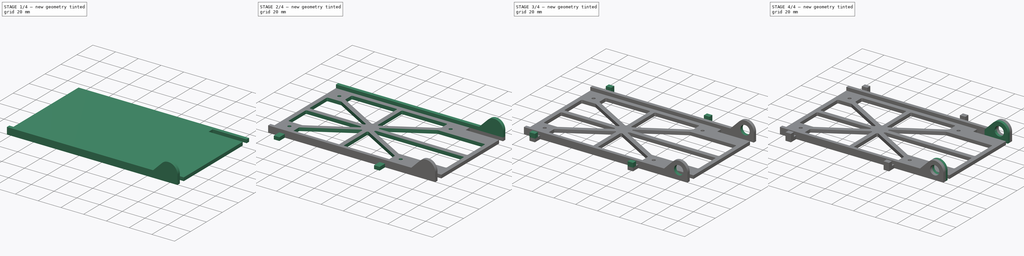
[diagram: build sequence overview — one tinted view per stage of 4, left to right]
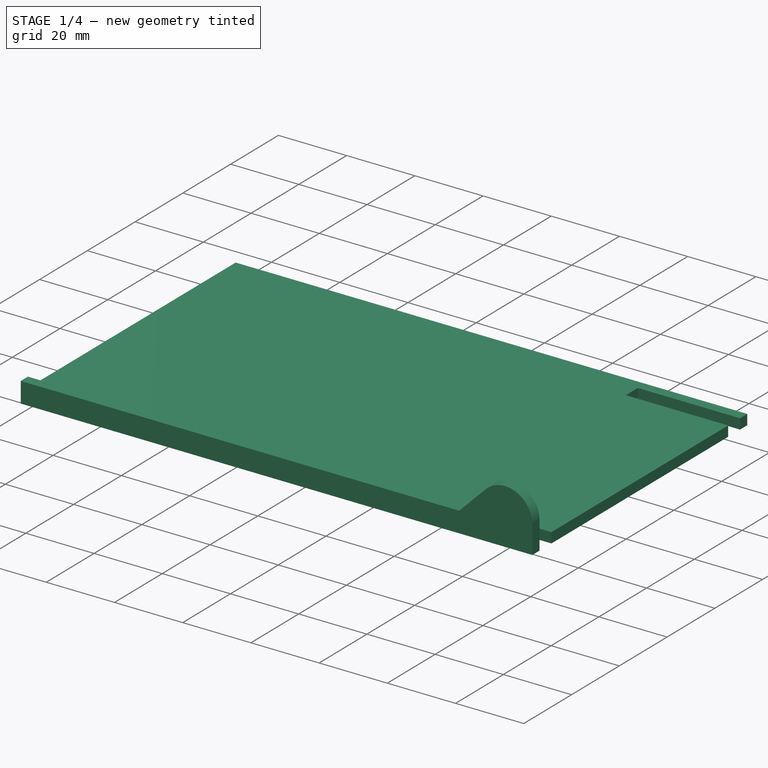
[diagram: stage 1 of 4 — iso view after this stage's code; geometry added in this stage tinted green]
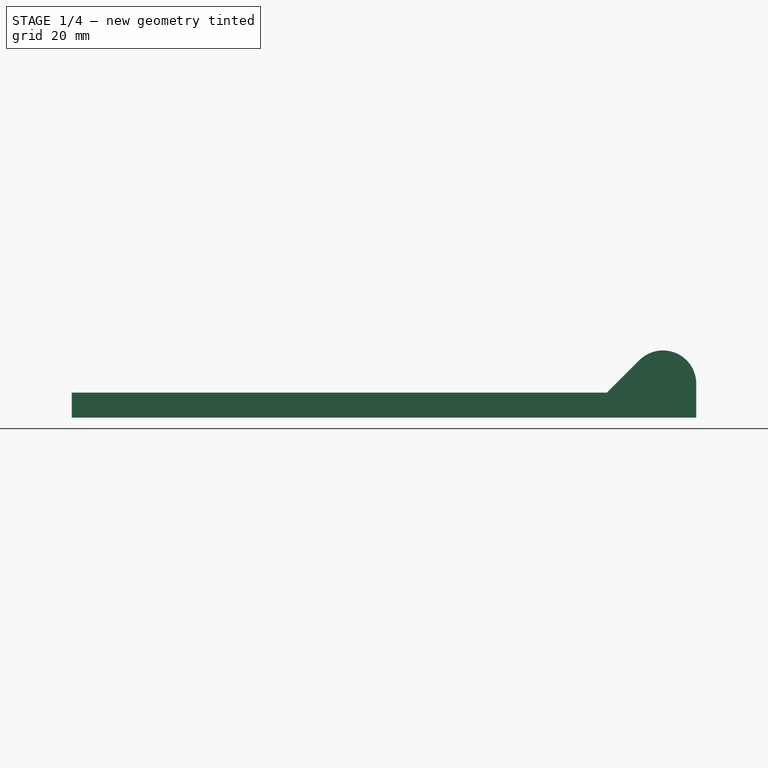
[diagram: stage 1 of 4 — front view after this stage's code; geometry added in this stage tinted green]
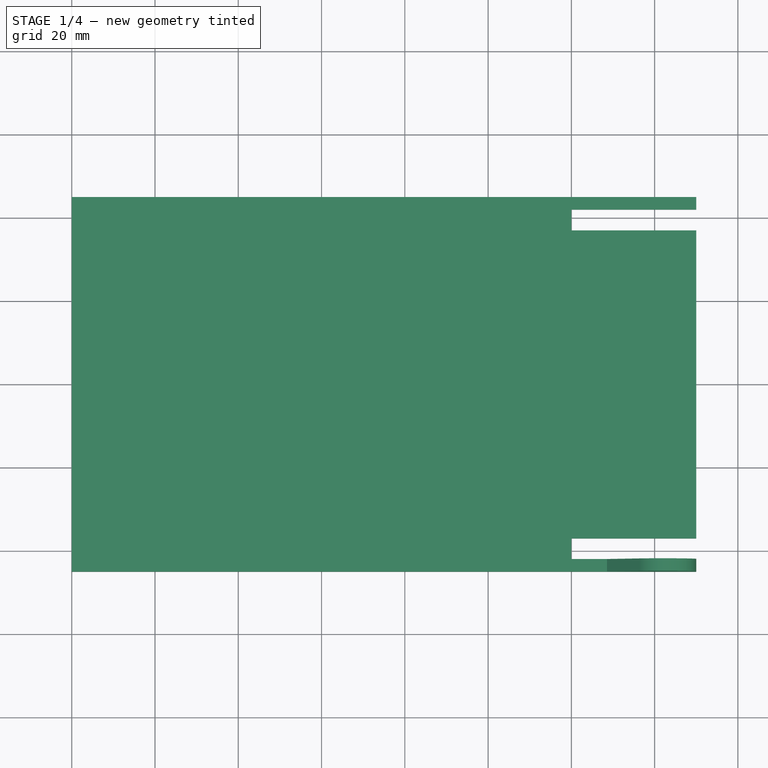
[diagram: stage 1 of 4 — top view after this stage's code; geometry added in this stage tinted green]
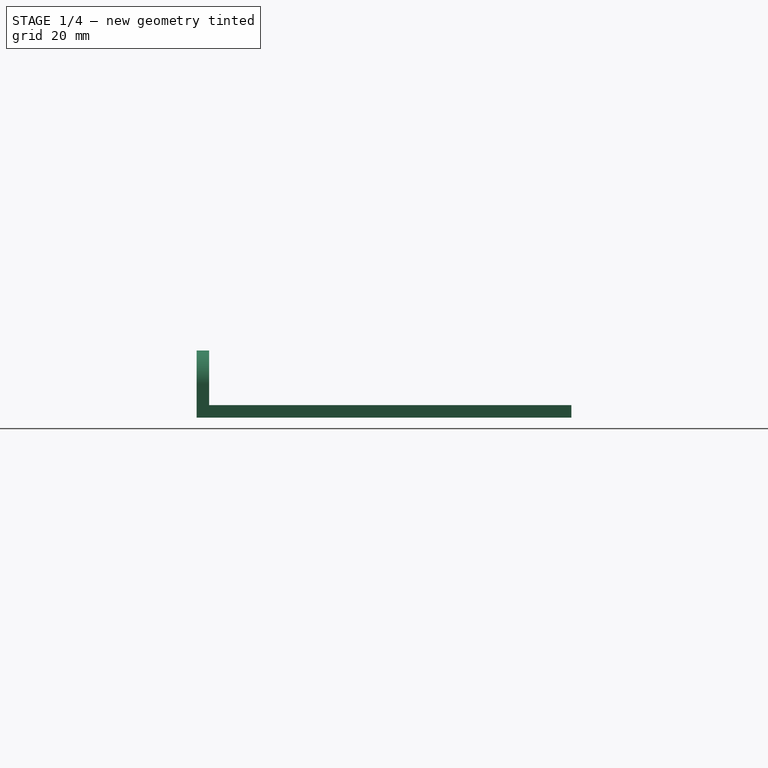
[diagram: stage 1 of 4 — right view after this stage's code; geometry added in this stage tinted green]
FCSTD DOCUMENT  (FreeCAD 0.16R6707 (Git))
Label: Plateau_av_ht
License: All rights reserved
LicenseURL: http://en.wikipedia.org/wiki/All_rights_reserved
objects: Sketcher::SketchObject×10, PartDesign::Pad×8, PartDesign::Pocket×2
note: 30 computed .brp shape members not serialized (recipe doc carries the construction recipe); baked Part::Feature solids carry a one-line shape summary decoded from their .brp

FEATURE [Sketcher::SketchObject] Sketch
  sketch-geometry (12):
    g0: LineSegment StartX=-120 StartY=45 StartZ=0 EndX=30 EndY=45 EndZ=0
    g1: LineSegment StartX=30 StartY=45 StartZ=0 EndX=30 EndY=42 EndZ=0
    g2: LineSegment StartX=30 StartY=-45 StartZ=0 EndX=-120 EndY=-45 EndZ=0
    g3: LineSegment StartX=-120 StartY=-45 StartZ=0 EndX=-120 EndY=45 EndZ=0
    g4: LineSegment StartX=0 StartY=42 StartZ=0 EndX=30 EndY=42 EndZ=0
    g5: LineSegment StartX=30 StartY=37 StartZ=0 EndX=0 EndY=37 EndZ=0
    g6: LineSegment StartX=0 StartY=37 StartZ=0 EndX=0 EndY=42 EndZ=0
    g7: LineSegment StartX=0 StartY=-37 StartZ=0 EndX=30 EndY=-37 EndZ=0
    g8: LineSegment StartX=30 StartY=-42 StartZ=0 EndX=0 EndY=-42 EndZ=0
    g9: LineSegment StartX=0 StartY=-42 StartZ=0 EndX=0 EndY=-37 EndZ=0
    g10: LineSegment StartX=30 StartY=37 StartZ=0 EndX=30 EndY=-37 EndZ=0
    g11: LineSegment StartX=30 StartY=-42 StartZ=0 EndX=30 EndY=-45 EndZ=0
  constraints (38):
    c: Coincident(g0,g1)
    c: Coincident(g11,g2)
    c: Coincident(g2,g3)
    c: Coincident(g3,g0)
    c: Horizontal(g0)
    c: Horizontal(g2)
    c: Vertical(g1)
    c: Vertical(g3)
    c: Coincident(g5,g6)
    c: Coincident(g6,g4)
    c: Horizontal(g4)
    c: Horizontal(g5)
    c: Vertical(g6)
    c: PointOnObject(g4,g-2)
    c: Coincident(g8,g9)
    c: Coincident(g9,g7)
    c: Horizontal(g7)
    c: Horizontal(g8)
    c: Vertical(g9)
    c: PointOnObject(g7,g-2)
    c: PointOnObject(g7,g1)
    c: PointOnObject(g5,g1)
    c: PointOnObject(g1,g4)
    c: PointOnObject(g10,g5)
    c: Tangent(g1,g10)
    c: PointOnObject(g10,g7)
    c: PointOnObject(g11,g8)
    c: Tangent(g10,g11)
    c: DistanceY(g1,g1) = 3
    c: DistanceY(g3,g3) = 90
    c: DistanceY(g11,g11) = 3
    c: DistanceY(g9,g9) = 5
    c: DistanceY(g6,g6) = 5
    c: DistanceX(g2,g2) = 150
    c: DistanceX(g5,g5) = 30
    c: Symmetric(g5,g7,g-1)
    c: Coincident(g4,g1)
    c: Coincident(g11,g8)
FEATURE [PartDesign::Pad] Pad
  Length = 3
  Length2 = 100
  Sketch = -> Sketch
  Type = 0
FEATURE [Sketcher::SketchObject] Sketch001
  ExternalGeometry = -> [Pad]
  Placement = pos=(0,-45,0) rot=(1,0,0;1.5708rad)
  Support = -> Pad [Face2]
  sketch-geometry (7):
    g0: LineSegment StartX=-120 StartY=6 StartZ=0 EndX=-120 EndY=0 EndZ=0
    g1: LineSegment StartX=-120 StartY=6 StartZ=0 EndX=8.56499 EndY=6 EndZ=0
    g2: LineSegment StartX=8.56499 StartY=6 StartZ=0 EndX=16.3432 EndY=13.7782 EndZ=0
    g3: LineSegment [constr] StartX=0 StartY=13.7782 StartZ=0 EndX=16.3432 EndY=13.7782 EndZ=0
    g4: LineSegment StartX=-120 StartY=0 StartZ=0 EndX=30 EndY=0 EndZ=0
    g5: LineSegment StartX=30 StartY=8.12132 StartZ=0 EndX=30 EndY=0 EndZ=0
    g6: ArcOfCircle CenterX=22 CenterY=8.1213 CenterZ=0 NormalX=0 NormalY=0 NormalZ=1 Radius=8 StartAngle=1.67581e-06 EndAngle=2.35619
  constraints (22):
    c: Horizontal(g1)
    c: Coincident(g2,g1)
    c: Coincident(g0,g1)
    c: Vertical(g0)
    c: Horizontal(g3)
    c: PointOnObject(g2,g3)
    c: PointOnObject(g3,g-2)
    c: Coincident(g3,g2)
    c: Coincident(g-5,g0)
    c: Horizontal(g4)
    c: Coincident(g4,g0)
    c: Coincident(g4,g-4)
    c: DistanceY(g0,g0) = 6
    c: Vertical(g5)
    c: Coincident(g5,g4)
    c: Coincident(g5,g6)
    c: Coincident(g2,g6)
    c: Tangent(g6,g5)
    c: Radius(g6) = 8
    c: Tangent(g2,g6)
    c: Angle(g3,g2) = 0.785398
    c: Distance(g2) = 11
FEATURE [PartDesign::Pad] Pad001
  Length = 3
  Length2 = 100
  Reversed = true
  Sketch = -> Sketch001
  Type = 0
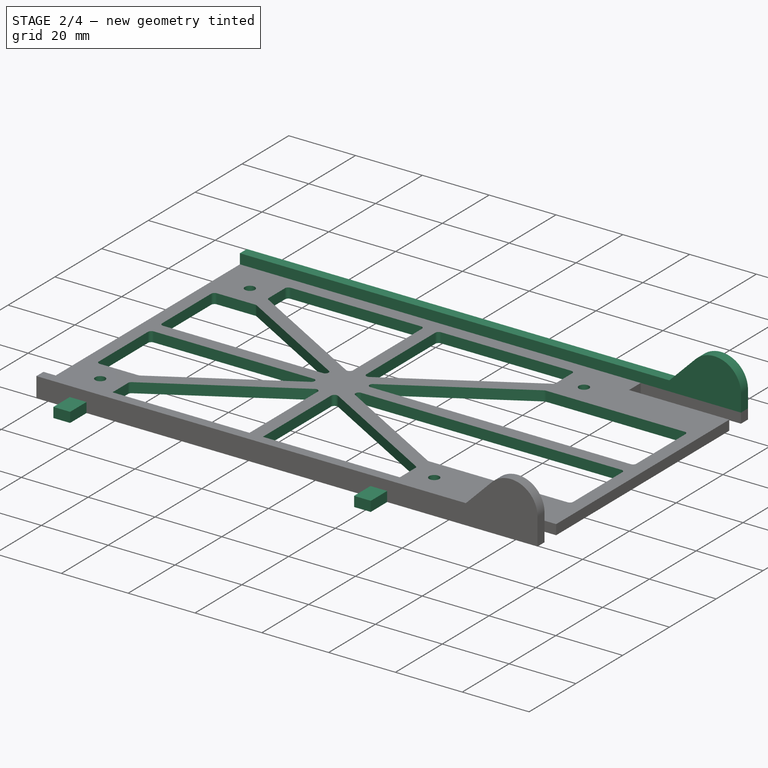
[diagram: stage 2 of 4 — iso view after this stage's code; geometry added in this stage tinted green]
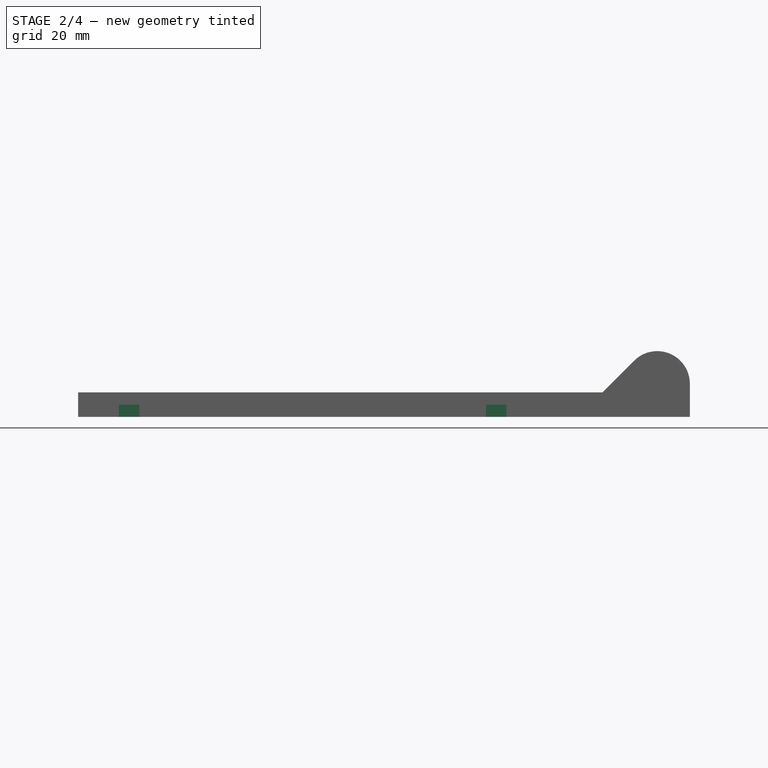
[diagram: stage 2 of 4 — front view after this stage's code; geometry added in this stage tinted green]
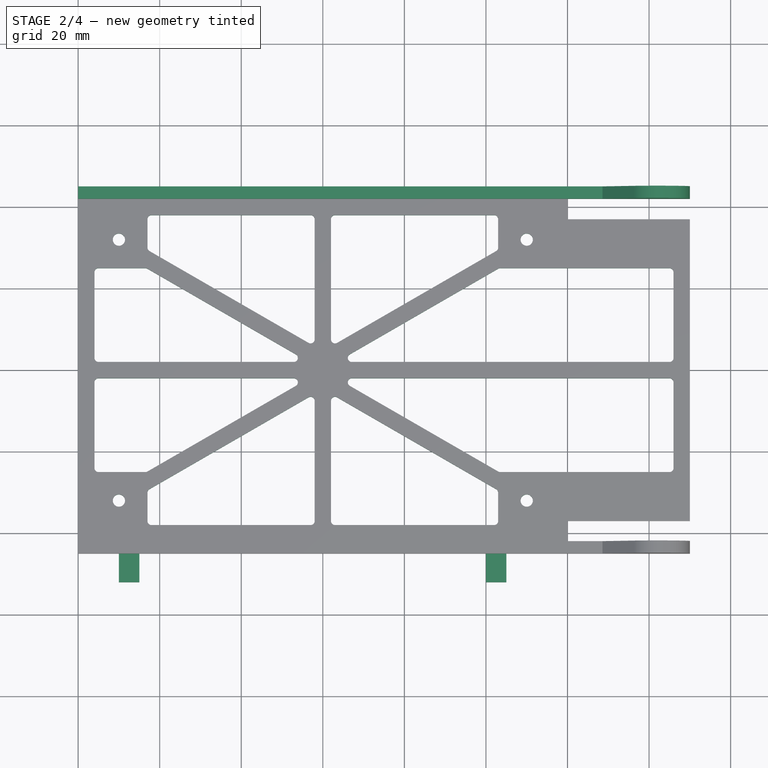
[diagram: stage 2 of 4 — top view after this stage's code; geometry added in this stage tinted green]
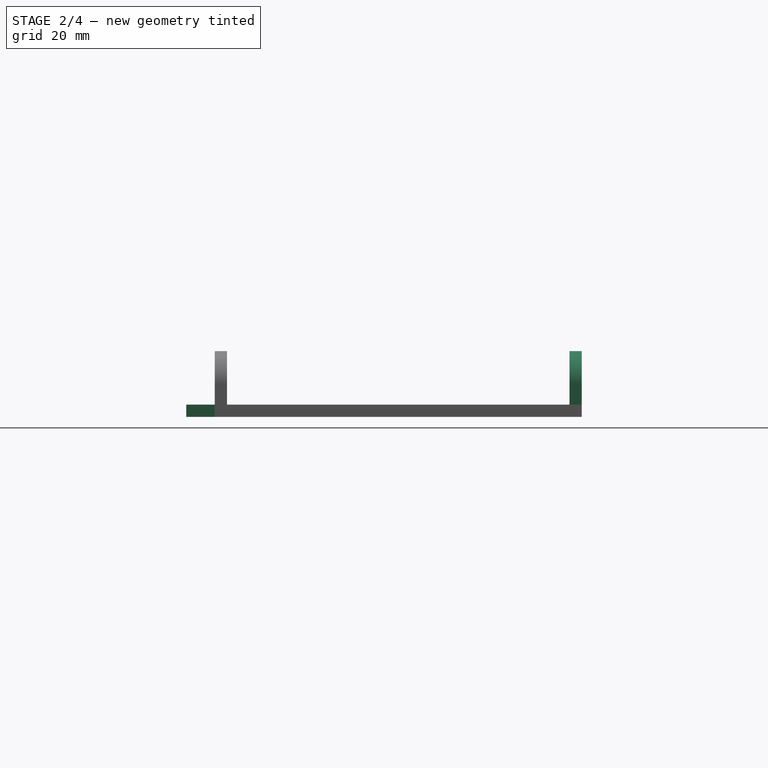
[diagram: stage 2 of 4 — right view after this stage's code; geometry added in this stage tinted green]
FEATURE [Sketcher::SketchObject] Sketch002
  ExternalGeometry = -> [Pad]
  Placement = pos=(0,45,0) rot=(0,0.707107,0.707107;3.14159rad)
  Support = -> Pad001 [Face1]
  sketch-geometry (9):
    g0: LineSegment StartX=-8.56498 StartY=6 StartZ=0 EndX=120 EndY=6 EndZ=0
    g1: LineSegment StartX=-8.56498 StartY=6 StartZ=0 EndX=-16.3432 EndY=13.7782 EndZ=0
    g2: LineSegment [constr] StartX=-16.3432 StartY=13.7782 StartZ=0 EndX=0 EndY=13.7782 EndZ=0
    g3: LineSegment StartX=120 StartY=0 StartZ=0 EndX=-19.2829 EndY=0 EndZ=0
    g4: LineSegment StartX=120 StartY=6 StartZ=0 EndX=120 EndY=0 EndZ=0
    g5: LineSegment StartX=-30 StartY=8.12131 StartZ=0 EndX=-30 EndY=0 EndZ=0
    g6: ArcOfCircle CenterX=-22 CenterY=8.12131 CenterZ=0 NormalX=0 NormalY=0 NormalZ=1 Radius=8 StartAngle=0.7854 EndAngle=3.14159
    g7: LineSegment StartX=-24.7171 StartY=0 StartZ=0 EndX=-30 EndY=0 EndZ=0
    g8: LineSegment StartX=-24.7171 StartY=0 StartZ=0 EndX=-19.2829 EndY=0 EndZ=0
  constraints (24):
    c: Horizontal(g0)
    c: Horizontal(g2)
    c: Horizontal(g3)
    c: Coincident(g0,g1)
    c: Coincident(g7,g5)
    c: Coincident(g7,g-4)
    c: Coincident(g0,g4)
    c: Coincident(g3,g4)
    c: Coincident(g3,g-5)
    c: Angle(g1,g2) = 0.785398
    c: DistanceY(g3,g0) = 6
    c: Tangent(g6,g-4)
    c: Tangent(g6,g1)
    c: Coincident(g6,g1)
    c: Coincident(g6,g2)
    c: Radius(g6) = 8
    c: Vertical(g5)
    c: Coincident(g6,g5)
    c: Distance(g1) = 11
    c: Vertical(g4)
    c: PointOnObject(g2,g-2)
    c: Tangent(g3,g7)
    c: Coincident(g8,g3)
    c: Coincident(g8,g7)
FEATURE [PartDesign::Pad] Pad002
  Length = 3
  Length2 = 100
  Reversed = true
  Sketch = -> Sketch002
  Type = 0
FEATURE [Sketcher::SketchObject] Sketch005
  ExternalGeometry = -> [Pad002]
  Placement = pos=(0,0,3) rot=(0,0,1;0rad)
  Support = -> Pad002 [Face3]
  sketch-geometry (86):
    g0: Circle CenterX=-110 CenterY=32 CenterZ=0 NormalX=0 NormalY=0 NormalZ=1 Radius=1.5
    g1: Circle CenterX=-110 CenterY=-32 CenterZ=0 NormalX=0 NormalY=0 NormalZ=1 Radius=1.5
    g2: LineSegment StartX=-58 StartY=37 StartZ=0 EndX=-58 EndY=7.54552 EndZ=0
    g3: LineSegment StartX=-56.5 StartY=6.67949 StartZ=0 EndX=-17.5 EndY=29.1962 EndZ=0
    g4: LineSegment StartX=-102.5 StartY=29.1962 StartZ=0 EndX=-63.5 EndY=6.67949 EndZ=0
    g5: LineSegment StartX=-103 StartY=24.866 StartZ=0 EndX=-66.6269 EndY=3.86603 EndZ=0
    g6: LineSegment StartX=-115 StartY=2 StartZ=0 EndX=-67.1269 EndY=2 EndZ=0
    g7: LineSegment StartX=-116 StartY=24 StartZ=0 EndX=-116 EndY=3 EndZ=0
    g8: LineSegment StartX=-116 StartY=-3 StartZ=0 EndX=-116 EndY=-24 EndZ=0
    g9: LineSegment StartX=-115 StartY=-2 StartZ=0 EndX=-67.1269 EndY=-2 EndZ=0
    g10: LineSegment StartX=-103 StartY=-24.866 StartZ=0 EndX=-66.6269 EndY=-3.86603 EndZ=0
    g11: LineSegment StartX=-102.5 StartY=-29.1962 StartZ=0 EndX=-63.5 EndY=-6.67949 EndZ=0
    g12: LineSegment StartX=-102 StartY=-38 StartZ=0 EndX=-63 EndY=-38 EndZ=0
    g13: LineSegment StartX=-62 StartY=-7.54552 StartZ=0 EndX=-62 EndY=-37 EndZ=0
    g14: LineSegment StartX=-62 StartY=37 StartZ=0 EndX=-62 EndY=7.54552 EndZ=0
    g15: LineSegment StartX=-58 StartY=-7.54552 StartZ=0 EndX=-58 EndY=-37 EndZ=0
    g16: LineSegment StartX=-56.5 StartY=-6.67949 StartZ=0 EndX=-17.5 EndY=-29.1962 EndZ=0
    g17: LineSegment StartX=-53.3731 StartY=-3.86603 StartZ=0 EndX=-17 EndY=-24.866 EndZ=0
    g18: LineSegment StartX=-52.8731 StartY=-2 StartZ=0 EndX=25 EndY=-2 EndZ=0
    g19: LineSegment StartX=26 StartY=-3 StartZ=0 EndX=26 EndY=-24 EndZ=0
    g20: LineSegment StartX=-52.8731 StartY=2 StartZ=0 EndX=25 EndY=2 EndZ=0
    g21: LineSegment StartX=-53.3731 StartY=3.86603 StartZ=0 EndX=-17 EndY=24.866 EndZ=0
    g22: LineSegment StartX=26 StartY=24 StartZ=0 EndX=26 EndY=3 EndZ=0
    g23: LineSegment StartX=-103 StartY=37 StartZ=0 EndX=-103 EndY=30.0622 EndZ=0
    g24: LineSegment StartX=-115 StartY=25 StartZ=0 EndX=-103.5 EndY=25 EndZ=0
    g25: LineSegment StartX=-115 StartY=-25 StartZ=0 EndX=-103.5 EndY=-25 EndZ=0
    g26: LineSegment StartX=-103 StartY=-37 StartZ=0 EndX=-103 EndY=-30.0622 EndZ=0
    g27: ArcOfCircle CenterX=25 CenterY=-3 CenterZ=0 NormalX=0 NormalY=0 NormalZ=1 Radius=1 StartAngle=1.7999e-08 EndAngle=1.5708
    g28: ArcOfCircle CenterX=25 CenterY=3 CenterZ=0 NormalX=0 NormalY=0 NormalZ=1 Radius=1 StartAngle=4.71239 EndAngle=6.28319
    g29: ArcOfCircle CenterX=-52.8731 CenterY=3 CenterZ=0 NormalX=0 NormalY=0 NormalZ=1 Radius=1 StartAngle=2.0944 EndAngle=4.71239
    g30: ArcOfCircle CenterX=-52.8731 CenterY=-3 CenterZ=0 NormalX=0 NormalY=0 NormalZ=1 Radius=1 StartAngle=1.5708 EndAngle=4.18879
    g31: ArcOfCircle CenterX=-57 CenterY=7.54552 CenterZ=0 NormalX=0 NormalY=0 NormalZ=1 Radius=1 StartAngle=3.14159 EndAngle=5.23599
    g32: ArcOfCircle CenterX=-63 CenterY=7.54552 CenterZ=0 NormalX=0 NormalY=0 NormalZ=1 Radius=1 StartAngle=4.18879 EndAngle=6.28319
    g33: ArcOfCircle CenterX=-102 CenterY=30.0622 CenterZ=0 NormalX=0 NormalY=0 NormalZ=1 Radius=1 StartAngle=3.14159 EndAngle=4.18879
    g34: ArcOfCircle CenterX=-103.5 CenterY=24 CenterZ=0 NormalX=0 NormalY=0 NormalZ=1 Radius=1 StartAngle=1.0472 EndAngle=1.5708
    g35: ArcOfCircle CenterX=-115 CenterY=24 CenterZ=0 NormalX=0 NormalY=0 NormalZ=1 Radius=1 StartAngle=1.5708 EndAngle=3.14159
    g36: ArcOfCircle CenterX=-115 CenterY=3 CenterZ=0 NormalX=0 NormalY=0 NormalZ=1 Radius=1 StartAngle=3.14159 EndAngle=4.71239
    g37: ArcOfCircle CenterX=-115 CenterY=-3 CenterZ=0 NormalX=0 NormalY=0 NormalZ=1 Radius=1 StartAngle=1.5708 EndAngle=3.1416
    g38: ArcOfCircle CenterX=-115 CenterY=-24 CenterZ=0 NormalX=0 NormalY=0 NormalZ=1 Radius=1 StartAngle=3.14159 EndAngle=4.71239
    g39: ArcOfCircle CenterX=-67.1269 CenterY=-3 CenterZ=0 NormalX=0 NormalY=0 NormalZ=1 Radius=1 StartAngle=5.23599 EndAngle=7.85398
    g40: ArcOfCircle CenterX=-63 CenterY=-7.54552 CenterZ=0 NormalX=0 NormalY=0 NormalZ=1 Radius=1 StartAngle=2.258e-08 EndAngle=2.0944
    g41: ArcOfCircle CenterX=-63 CenterY=-37 CenterZ=0 NormalX=0 NormalY=0 NormalZ=1 Radius=1 StartAngle=4.71239 EndAngle=6.28319
    g42: ArcOfCircle CenterX=-57 CenterY=-7.54552 CenterZ=0 NormalX=0 NormalY=0 NormalZ=1 Radius=1 StartAngle=1.0472 EndAngle=3.14159
    g43: LineSegment [constr] StartX=-32.2628 StartY=20.6728 StartZ=0 EndX=-30.2628 EndY=17.2087 EndZ=0
    g44: LineSegment [constr] StartX=-37.5046 StartY=-17.6465 StartZ=0 EndX=-35.5046 EndY=-14.1824 EndZ=0
    g45: LineSegment [constr] StartX=-76.3362 StartY=-9.47166 StartZ=0 EndX=-74.3362 EndY=-12.9358 EndZ=0
    g46: LineSegment [constr] StartX=-84.5003 StartY=14.1852 StartZ=0 EndX=-82.5003 EndY=17.6493 EndZ=0
    g47: ArcOfCircle CenterX=-102 CenterY=-30.0622 CenterZ=0 NormalX=0 NormalY=0 NormalZ=1 Radius=1 StartAngle=2.09439 EndAngle=3.14159
    g48: ArcOfCircle CenterX=-102 CenterY=-37 CenterZ=0 NormalX=0 NormalY=0 NormalZ=1 Radius=1 StartAngle=3.14159 EndAngle=4.71239
    g49: GeomPoint [constr] X=-120 Y=0 Z=0
    g50: LineSegment [constr] StartX=-103 StartY=-24.866 StartZ=0 EndX=-103 EndY=-30.0622 EndZ=0
    g51: LineSegment [constr] StartX=-103 StartY=30.0622 StartZ=0 EndX=-103 EndY=24.866 EndZ=0
    g52: LineSegment [constr] StartX=-57 StartY=7.54552 StartZ=0 EndX=-57 EndY=-7.54552 EndZ=0
    g53: LineSegment [constr] StartX=-63 StartY=7.54552 StartZ=0 EndX=-57 EndY=7.54552 EndZ=0
    g54: LineSegment [constr] StartX=-67.1269 StartY=3 StartZ=0 EndX=-67.1269 EndY=-3 EndZ=0
    g55: LineSegment [constr] StartX=-63 StartY=38 StartZ=0 EndX=-57 EndY=38 EndZ=0
    g56: LineSegment StartX=-102 StartY=38 StartZ=0 EndX=-63 EndY=38 EndZ=0
    g57: LineSegment StartX=-57 StartY=38 StartZ=0 EndX=-18 EndY=38 EndZ=0
    g58: ArcOfCircle CenterX=-102 CenterY=37 CenterZ=0 NormalX=0 NormalY=0 NormalZ=1 Radius=1 StartAngle=1.5708 EndAngle=3.14159
    g59: ArcOfCircle CenterX=-63 CenterY=37 CenterZ=0 NormalX=0 NormalY=0 NormalZ=1 Radius=1 StartAngle=0 EndAngle=1.5708
    g60: ArcOfCircle CenterX=-57 CenterY=37 CenterZ=0 NormalX=0 NormalY=0 NormalZ=1 Radius=1 StartAngle=1.5708 EndAngle=3.14159
    g61: ArcOfCircle CenterX=-67.1269 CenterY=3 CenterZ=0 NormalX=0 NormalY=0 NormalZ=1 Radius=1 StartAngle=4.71239 EndAngle=7.33038
    g62: LineSegment [constr] StartX=-52.8731 StartY=3 StartZ=0 EndX=-52.8731 EndY=-3 EndZ=0
    g63: ArcOfCircle CenterX=-103.5 CenterY=-24 CenterZ=0 NormalX=0 NormalY=0 NormalZ=1 Radius=1 StartAngle=4.71239 EndAngle=5.23599
    g64: LineSegment StartX=-17 StartY=-30.0622 StartZ=0 EndX=-17 EndY=-37 EndZ=0
    g65: LineSegment StartX=-57 StartY=-38 StartZ=0 EndX=-18 EndY=-38 EndZ=0
    g66: ArcOfCircle CenterX=-18 CenterY=-30.0622 CenterZ=0 NormalX=0 NormalY=0 NormalZ=1 Radius=1 StartAngle=0 EndAngle=1.0472
    g67: ArcOfCircle CenterX=-57 CenterY=-37 CenterZ=0 NormalX=0 NormalY=0 NormalZ=1 Radius=1 StartAngle=3.14159 EndAngle=4.71239
    g68: ArcOfCircle CenterX=-18 CenterY=-37 CenterZ=0 NormalX=0 NormalY=0 NormalZ=1 Radius=1 StartAngle=4.71239 EndAngle=6.28319
    g69: LineSegment [constr] StartX=-63 StartY=-38 StartZ=0 EndX=-57 EndY=-38 EndZ=0
    g70: Circle CenterX=-10 CenterY=-32 CenterZ=0 NormalX=0 NormalY=0 NormalZ=1 Radius=1.5
    g71: LineSegment StartX=-16.5 StartY=-25 StartZ=0 EndX=25 EndY=-25 EndZ=0
    g72: ArcOfCircle CenterX=-16.5 CenterY=-24 CenterZ=0 NormalX=0 NormalY=0 NormalZ=1 Radius=1 StartAngle=4.18879 EndAngle=4.71239
    g73: ArcOfCircle CenterX=25 CenterY=-24 CenterZ=0 NormalX=0 NormalY=0 NormalZ=1 Radius=1 StartAngle=4.71239 EndAngle=6.28319
    g74: LineSegment [constr] StartX=-17 StartY=-24.866 StartZ=0 EndX=-17 EndY=-30.0622 EndZ=0
    g75: LineSegment StartX=-16.5 StartY=25 StartZ=0 EndX=25 EndY=25 EndZ=0
    g76: Circle CenterX=-10 CenterY=32 CenterZ=0 NormalX=0 NormalY=0 NormalZ=1 Radius=1.5
    g77: ArcOfCircle CenterX=25 CenterY=24 CenterZ=0 NormalX=0 NormalY=0 NormalZ=1 Radius=1 StartAngle=0 EndAngle=1.5708
    g78: LineSegment [constr] StartX=26 StartY=3 StartZ=0 EndX=26 EndY=-3 EndZ=0
    g79: ArcOfCircle CenterX=-16.5 CenterY=24 CenterZ=0 NormalX=0 NormalY=0 NormalZ=1 Radius=1 StartAngle=1.5708 EndAngle=2.0944
    g80: LineSegment StartX=-17 StartY=37 StartZ=0 EndX=-17 EndY=30.0622 EndZ=0
    g81: LineSegment [constr] StartX=-17 StartY=30.0622 StartZ=0 EndX=-17 EndY=24.866 EndZ=0
    g82: ArcOfCircle CenterX=-18 CenterY=30.0622 CenterZ=0 NormalX=0 NormalY=0 NormalZ=1 Radius=1 StartAngle=5.23599 EndAngle=6.28319
    g83: ArcOfCircle CenterX=-18 CenterY=37 CenterZ=0 NormalX=0 NormalY=0 NormalZ=1 Radius=1 StartAngle=0 EndAngle=1.5708
    g84: LineSegment [constr] StartX=-63 StartY=-7.54552 StartZ=0 EndX=-57 EndY=-7.54552 EndZ=0
    g85: LineSegment [constr] StartX=-116 StartY=3 StartZ=0 EndX=-116 EndY=-3 EndZ=0
  constraints (247):
    c: Coincident(g3,g31)
    c: Coincident(g4,g32)
    c: Coincident(g4,g33)
    c: Coincident(g51,g5)
    c: Coincident(g36,g7)
    c: Coincident(g8,g37)
    c: Coincident(g38,g8)
    c: Coincident(g37,g9)
    c: Coincident(g10,g39)
    c: Coincident(g40,g11)
    c: Coincident(g11,g47)
    c: Coincident(g41,g12)
    c: Coincident(g48,g12)
    c: Coincident(g13,g41)
    c: Coincident(g14,g32)
    c: Coincident(g27,g18)
    c: Coincident(g19,g27)
    c: Coincident(g20,g28)
    c: Coincident(g29,g21)
    c: Coincident(g28,g22)
    c: Coincident(g51,g23)
    c: Coincident(g34,g24)
    c: Coincident(g25,g38)
    c: Coincident(g47,g26)
    c: Coincident(g48,g26)
    c: Coincident(g51,g33)
    c: Coincident(g51,g34)
    c: Coincident(g47,g50)
    c: Radius(g27) = 1
    c: Equal(g27,g30)
    c: Radius(g48) = 1
    c: Equal(g48,g47)
    c: Equal(g48,g41)
    c: Equal(g48,g40)
    c: Radius(g38) = 1
    c: Equal(g38,g37)
    c: Equal(g38,g39)
    c: Radius(g35) = 1
    c: Equal(g35,g36)
    c: Equal(g35,g34)
    c: Equal(g35,g32)
    c: Equal(g35,g33)
    c: Radius(g0) = 1.5
    c: Equal(g0,g1)
    c: Vertical(g50)
    c: Vertical(g51)
    c: Symmetric(g18,g20,g-1)
    c: Vertical(g22)
    c: Vertical(g19)
    c: Horizontal(g18)
    c: Horizontal(g20)
    c: DistanceY(g18,g20) = 4
    c: Vertical(g13)
    c: Vertical(g14)
    c: Vertical(g26)
    c: Vertical(g8)
    c: Vertical(g7)
    c: Vertical(g23)
    c: Horizontal(g24)
    c: Horizontal(g6)
    c: Horizontal(g9)
    c: Horizontal(g25)
    c: Horizontal(g12)
    c: PointOnObject(g45,g10)
    c: PointOnObject(g45,g11)
    c: PointOnObject(g44,g16)
    c: PointOnObject(g44,g17)
    c: Angle(g16,g44) = 1.5708
    c: Distance(g44) = 4
    c: DistanceY(g-6,g1) = 10
    c: DistanceX(g-6,g1) = 10
    c: DistanceX(g1,g26) = 7
    c: Angle(g45,g11) = 1.5708
    c: Distance(g45) = 4
    c: DistanceX(g-6,g8) = 4
    c: Symmetric(g6,g9,g-1)
    c: DistanceY(g9,g6) = 4
    c: DistanceX(g-5,g0) = 10
    c: DistanceY(g0,g-5) = 10
    c: DistanceY(g24,g0) = 7
    c: DistanceX(g-5,g7) = 4
    c: PointOnObject(g46,g4)
    c: PointOnObject(g46,g5)
    c: Distance(g46) = 4
    c: PointOnObject(g43,g3)
    c: PointOnObject(g43,g21)
    c: Angle(g3,g43) = 1.5708
    c: Distance(g43) = 4
    c: Parallel(g21,g3)
    c: Parallel(g4,g5)
    c: Parallel(g17,g16)
    c: Parallel(g11,g10)
    c: Tangent(g32,g14)
    c: Tangent(g4,g32)
    c: Tangent(g40,g11)
    c: Tangent(g31,g3)
    c: Tangent(g29,g21)
    c: Tangent(g30,g18)
    c: Tangent(g17,g30)
    c: Tangent(g16,g42)
    c: Tangent(g10,g39)
    c: Tangent(g9,g39)
    c: Horizontal(g53)
    c: Coincident(g53,g31)
    c: Coincident(g53,g32)
    c: Vertical(g54)
    c: Coincident(g54,g39)
    c: Tangent(g34,g5)
    c: Tangent(g34,g24)
    c: Tangent(g24,g35)
    c: Tangent(g7,g35)
    c: Tangent(g6,g36)
    c: Angle(g46,g5) = 1.5708
    c: PointOnObject(g49,g-1)
    c: Vertical(g2)
    c: Horizontal(g55)
    c: Coincident(g31,g2)
    c: Radius(g31) = 1
    c: Tangent(g31,g2)
    c: Horizontal(g56)
    c: Coincident(g29,g20)
    c: Radius(g29) = 1
    c: Horizontal(g57)
    c: Coincident(g40,g13)
    c: Coincident(g52,g31)
    c: Vertical(g52)
    c: Coincident(g42,g52)
    c: Coincident(g15,g42)
    c: Coincident(g42,g16)
    c: Radius(g42) = 1
    c: Vertical(g15)
    c: Tangent(g40,g13)
    c: Tangent(g42,g15)
    c: Coincident(g9,g39)
    c: Tangent(g37,g8)
    c: Tangent(g37,g9)
    c: Tangent(g36,g7)
    c: Tangent(g56,g58) = 1.5708
    c: Tangent(g23,g58) = -1.5708
    c: Tangent(g56,g59) = 1.5708
    c: Tangent(g14,g59) = 1.5708
    c: Tangent(g2,g60) = -1.5708
    c: Tangent(g57,g60) = 1.5708
    c: Radius(g59) = 1
    c: Radius(g58) = 1
    c: Tangent(g33,g23)
    c: Tangent(g33,g4)
    c: Radius(g60) = 1
    c: Coincident(g56,g55)
    c: Coincident(g55,g57)
    c: DistanceX(g14,g2) = 4
    c: Tangent(g6,g61) = -1.5708
    c: Tangent(g5,g61) = 1.5708
    c: Radius(g61) = 1
    c: Coincident(g54,g61)
    c: Tangent(g29,g20)
    c: Coincident(g30,g18)
    c: Coincident(g30,g17)
    c: Vertical(g62)
    c: Coincident(g62,g30)
    c: Coincident(g62,g29)
    c: Tangent(g41,g13)
    c: Tangent(g41,g12)
    c: DistanceY(g12,g49) = 38
    c: Tangent(g10,g63) = -1.5708
    c: Tangent(g25,g63) = -1.5708
    c: Radius(g63) = 1
    c: Coincident(g10,g50)
    c: Tangent(g38,g8)
    c: Tangent(g38,g25)
    c: DistanceX(g0,g23) = 7
    c: Tangent(g47,g26)
    c: Tangent(g11,g47)
    c: Tangent(g48,g26)
    c: Tangent(g12,g48)
    c: DistanceY(g49,g56) = 38
    c: Horizontal(g65)
    c: Vertical(g64)
    c: Tangent(g16,g66) = 1.5708
    c: Tangent(g64,g66) = 1.5708
    c: Tangent(g65,g67) = -1.5708
    c: Tangent(g15,g67) = -1.5708
    c: Tangent(g64,g68) = 1.5708
    c: Tangent(g65,g68) = -1.5708
    c: Radius(g68) = 1
    c: Equal(g68,g66)
    c: Equal(g68,g67)
    c: Horizontal(g69)
    c: Coincident(g12,g69)
    c: Coincident(g69,g65)
    c: DistanceX(g13,g15) = 4
    c: Radius(g70) = 1.5
    c: Horizontal(g71)
    c: Tangent(g17,g72) = -1.5708
    c: Tangent(g71,g72) = -1.5708
    c: Tangent(g71,g73) = -1.5708
    c: Tangent(g19,g73) = 1.5708
    c: Radius(g72) = 1
    c: Equal(g72,g73)
    c: Vertical(g74)
    c: Coincident(g74,g64)
    c: Coincident(g17,g74)
    c: DistanceX(g64,g70) = 7
    c: Tangent(g27,g19)
    c: Tangent(g27,g18)
    c: Tangent(g28,g20)
    c: Tangent(g28,g22)
    c: Horizontal(g75)
    c: DistanceY(g70,g-1) = 32
    c: DistanceX(g70,g-1) = 10
    c: DistanceX(g76,g-1) = 10
    c: DistanceY(g-1,g76) = 32
    c: Radius(g76) = 1.5
    c: Tangent(g22,g77) = 1.5708
    c: Tangent(g75,g77) = 1.5708
    c: Radius(g77) = 1
    c: DistanceX(g-1,g22) = 26
    c: Vertical(g78)
    c: Coincident(g78,g19)
    c: Coincident(g78,g22)
    c: Tangent(g21,g79) = 1.5708
    c: Tangent(g75,g79) = 1.5708
    c: Radius(g79) = 1
    c: Vertical(g80)
    c: DistanceY(g71,g-1) = 25
    c: Vertical(g81)
    c: Coincident(g81,g21)
    c: Tangent(g80,g82) = 1.5708
    c: Tangent(g3,g82) = -1.5708
    c: Tangent(g80,g83) = 1.5708
    c: Tangent(g57,g83) = 1.5708
    c: Radius(g82) = 1
    c: Radius(g83) = 1
    c: Coincident(g81,g80)
    c: DistanceY(g25,g49) = 25
    c: Horizontal(g84)
    c: Coincident(g42,g84)
    c: Coincident(g40,g84)
    c: DistanceX(g80,g76) = 7
    c: Angle(g20,g21) = 0.523599
    c: Angle(g5,g6) = 0.523599
    c: Vertical(g85)
    c: Coincident(g8,g85)
    c: Coincident(g7,g85)
    c: Coincident(g24,g35)
    c: Coincident(g7,g35)
    c: Coincident(g6,g36)
FEATURE [PartDesign::Pocket] Pocket
  Length = 5
  Sketch = -> Sketch005
  Type = 1
FEATURE [Sketcher::SketchObject] Sketch006
  ExternalGeometry = -> [Pocket]
  Placement = pos=(0,-45,0) rot=(1,0,0;1.5708rad)
  Support = -> Pocket [Face88]
  sketch-geometry (8):
    g0: LineSegment StartX=-110 StartY=3 StartZ=0 EndX=-105 EndY=3 EndZ=0
    g1: LineSegment StartX=-105 StartY=3 StartZ=0 EndX=-105 EndY=0 EndZ=0
    g2: LineSegment StartX=-105 StartY=0 StartZ=0 EndX=-110 EndY=0 EndZ=0
    g3: LineSegment StartX=-110 StartY=0 StartZ=0 EndX=-110 EndY=3 EndZ=0
    g4: LineSegment StartX=-20 StartY=3 StartZ=0 EndX=-15 EndY=3 EndZ=0
    g5: LineSegment StartX=-15 StartY=3 StartZ=0 EndX=-15 EndY=0 EndZ=0
    g6: LineSegment StartX=-15 StartY=0 StartZ=0 EndX=-20 EndY=0 EndZ=0
    g7: LineSegment StartX=-20 StartY=0 StartZ=0 EndX=-20 EndY=3 EndZ=0
  constraints (24):
    c: Coincident(g0,g1)
    c: Coincident(g0,g3)
    c: Coincident(g1,g2)
    c: Coincident(g2,g3)
    c: Coincident(g4,g5)
    c: Coincident(g4,g7)
    c: Coincident(g5,g6)
    c: Coincident(g6,g7)
    c: DistanceX(g-4,g2) = 10
    c: PointOnObject(g0,g-3)
    c: PointOnObject(g1,g-4)
    c: DistanceX(g0,g0) = 5
    c: PointOnObject(g6,g-4)
    c: PointOnObject(g4,g-3)
    c: DistanceX(g4,g4) = 5
    c: DistanceX(g5,g-1) = 15
    c: Vertical(g5)
    c: Vertical(g7)
    c: Vertical(g1)
    c: Vertical(g3)
    c: Horizontal(g2)
    c: Horizontal(g0)
    c: Horizontal(g6)
    c: Horizontal(g4)
FEATURE [PartDesign::Pad] Pad003
  Length = 7
  Length2 = 100
  Sketch = -> Sketch006
  Type = 0
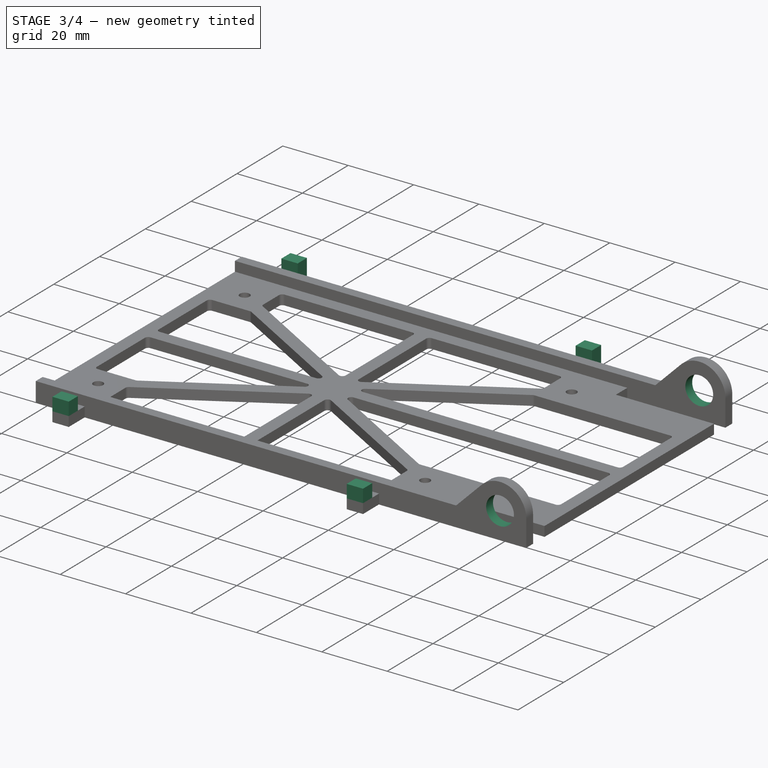
[diagram: stage 3 of 4 — iso view after this stage's code; geometry added in this stage tinted green]
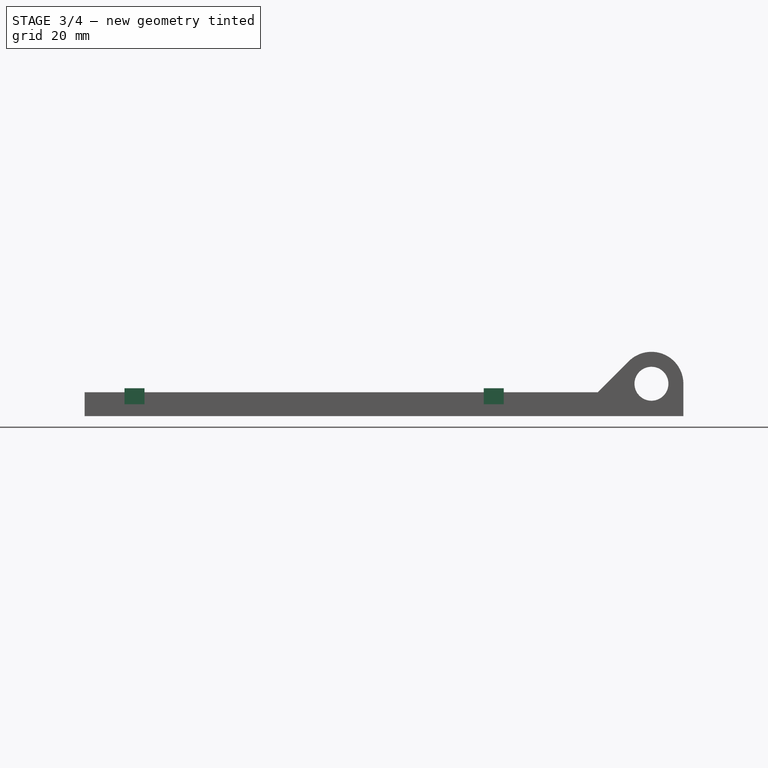
[diagram: stage 3 of 4 — front view after this stage's code; geometry added in this stage tinted green]
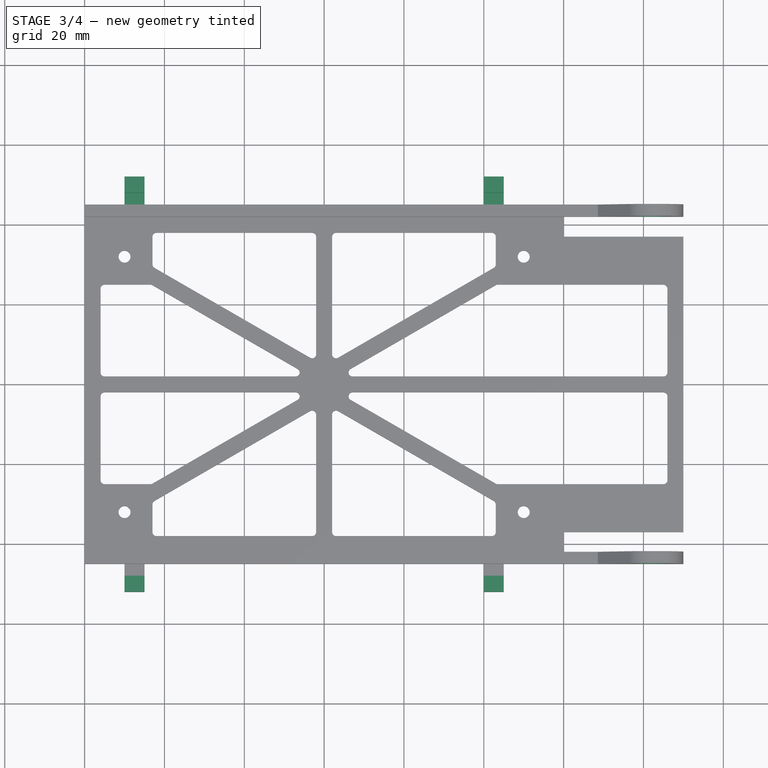
[diagram: stage 3 of 4 — top view after this stage's code; geometry added in this stage tinted green]
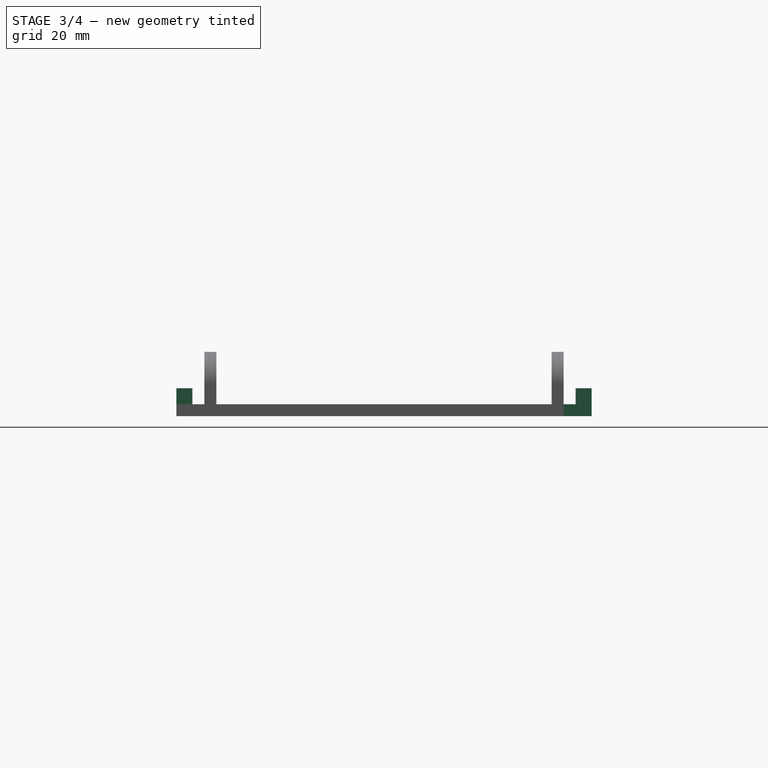
[diagram: stage 3 of 4 — right view after this stage's code; geometry added in this stage tinted green]
FEATURE [Sketcher::SketchObject] Sketch009
  ExternalGeometry = -> [Pad003]
  Placement = pos=(0,45,0) rot=(0,0.707107,0.707107;3.14159rad)
  Support = -> Pad003 [Face110]
  sketch-geometry (8):
    g0: LineSegment StartX=105 StartY=3 StartZ=0 EndX=110 EndY=3 EndZ=0
    g1: LineSegment StartX=110 StartY=3 StartZ=0 EndX=110 EndY=0 EndZ=0
    g2: LineSegment StartX=110 StartY=0 StartZ=0 EndX=105 EndY=0 EndZ=0
    g3: LineSegment StartX=105 StartY=0 StartZ=0 EndX=105 EndY=3 EndZ=0
    g4: LineSegment StartX=15 StartY=3 StartZ=0 EndX=20 EndY=3 EndZ=0
    g5: LineSegment StartX=20 StartY=3 StartZ=0 EndX=20 EndY=0 EndZ=0
    g6: LineSegment StartX=20 StartY=0 StartZ=0 EndX=15 EndY=0 EndZ=0
    g7: LineSegment StartX=15 StartY=0 StartZ=0 EndX=15 EndY=3 EndZ=0
  constraints (24):
    c: Coincident(g0,g1)
    c: Coincident(g1,g2)
    c: Coincident(g2,g3)
    c: Coincident(g3,g0)
    c: Horizontal(g0)
    c: Horizontal(g2)
    c: Vertical(g1)
    c: Vertical(g3)
    c: Coincident(g4,g5)
    c: Coincident(g5,g6)
    c: Coincident(g6,g7)
    c: Coincident(g7,g4)
    c: Horizontal(g4)
    c: Horizontal(g6)
    c: Vertical(g5)
    c: Vertical(g7)
    c: PointOnObject(g5,g-4)
    c: PointOnObject(g4,g-3)
    c: DistanceX(g4,g4) = 5
    c: PointOnObject(g0,g-3)
    c: PointOnObject(g1,g-4)
    c: DistanceX(g0,g0) = 5
    c: DistanceX(g-1,g6) = 15
    c: DistanceX(g1,g-4) = 10
FEATURE [PartDesign::Pad] Pad006
  Length = 7
  Length2 = 100
  Sketch = -> Sketch009
  Type = 0
FEATURE [Sketcher::SketchObject] Sketch008
  ExternalGeometry = -> [Pad006]
  Placement = pos=(0,0,3) rot=(0,0,1;0rad)
  Support = -> Pad006 [Face121]
  sketch-geometry (16):
    g0: LineSegment StartX=-20 StartY=52 StartZ=0 EndX=-15 EndY=52 EndZ=0
    g1: LineSegment StartX=-15 StartY=52 StartZ=0 EndX=-15 EndY=48 EndZ=0
    g2: LineSegment StartX=-15 StartY=48 StartZ=0 EndX=-20 EndY=48 EndZ=0
    g3: LineSegment StartX=-20 StartY=48 StartZ=0 EndX=-20 EndY=52 EndZ=0
    g4: LineSegment StartX=-110 StartY=52 StartZ=0 EndX=-105 EndY=52 EndZ=0
    g5: LineSegment StartX=-105 StartY=52 StartZ=0 EndX=-105 EndY=48 EndZ=0
    g6: LineSegment StartX=-105 StartY=48 StartZ=0 EndX=-110 EndY=48 EndZ=0
    g7: LineSegment StartX=-110 StartY=48 StartZ=0 EndX=-110 EndY=52 EndZ=0
    g8: LineSegment StartX=-110 StartY=-48 StartZ=0 EndX=-105 EndY=-48 EndZ=0
    g9: LineSegment StartX=-105 StartY=-48 StartZ=0 EndX=-105 EndY=-52 EndZ=0
    g10: LineSegment StartX=-105 StartY=-52 StartZ=0 EndX=-110 EndY=-52 EndZ=0
    g11: LineSegment StartX=-110 StartY=-52 StartZ=0 EndX=-110 EndY=-48 EndZ=0
    g12: LineSegment StartX=-20 StartY=-48 StartZ=0 EndX=-15 EndY=-48 EndZ=0
    g13: LineSegment StartX=-15 StartY=-48 StartZ=0 EndX=-15 EndY=-52 EndZ=0
    g14: LineSegment StartX=-15 StartY=-52 StartZ=0 EndX=-20 EndY=-52 EndZ=0
    g15: LineSegment StartX=-20 StartY=-52 StartZ=0 EndX=-20 EndY=-48 EndZ=0
  constraints (41):
    c: Horizontal(g6)
    c: Horizontal(g4)
    c: Coincident(g6,g7)
    c: Coincident(g5,g6)
    c: Coincident(g4,g5)
    c: Coincident(g4,g-6)
    c: Coincident(g4,g7)
    c: Coincident(g4,g-5)
    c: Vertical(g7)
    c: Vertical(g5)
    c: Coincident(g0,g3)
    c: Coincident(g0,g-4)
    c: Coincident(g0,g1)
    c: Coincident(g0,g-3)
    c: Coincident(g2,g3)
    c: Coincident(g1,g2)
    c: Vertical(g1)
    c: Vertical(g3)
    c: Horizontal(g2)
    c: DistanceY(g1,g0) = 4
    c: DistanceY(g5,g4) = 4
    c: Coincident(g10,g11)
    c: Coincident(g10,g-8)
    c: Coincident(g9,g10)
    c: Coincident(g9,g-7)
    c: Coincident(g8,g11)
    c: Coincident(g8,g9)
    c: Vertical(g9)
    c: Horizontal(g8)
    c: Vertical(g11)
    c: DistanceY(g9,g8) = 4
    c: Coincident(g13,g14)
    c: Coincident(g13,g-9)
    c: Coincident(g14,g15)
    c: Coincident(g14,g-10)
    c: Coincident(g12,g15)
    c: Coincident(g12,g13)
    c: Vertical(g13)
    c: Horizontal(g12)
    c: Vertical(g15)
    c: DistanceY(g13,g12) = 4
FEATURE [PartDesign::Pad] Pad007
  Length = 4
  Length2 = 100
  Sketch = -> Sketch008
  Type = 0
FEATURE [Sketcher::SketchObject] Sketch010
  ExternalGeometry = -> [Pad007]
  Placement = pos=(0,-45,0) rot=(1,0,0;1.5708rad)
  Support = -> Pad007 [Face9]
  sketch-geometry (1):
    g0: Circle CenterX=22 CenterY=8.1213 CenterZ=0 NormalX=0 NormalY=0 NormalZ=1 Radius=4.25
  constraints (3):
    c: Radius(g-3) = 8
    c: Coincident(g0,g-3)
    c: Radius(g0) = 4.25
FEATURE [PartDesign::Pocket] Pocket001
  Length = 5
  Sketch = -> Sketch010
  Type = 1
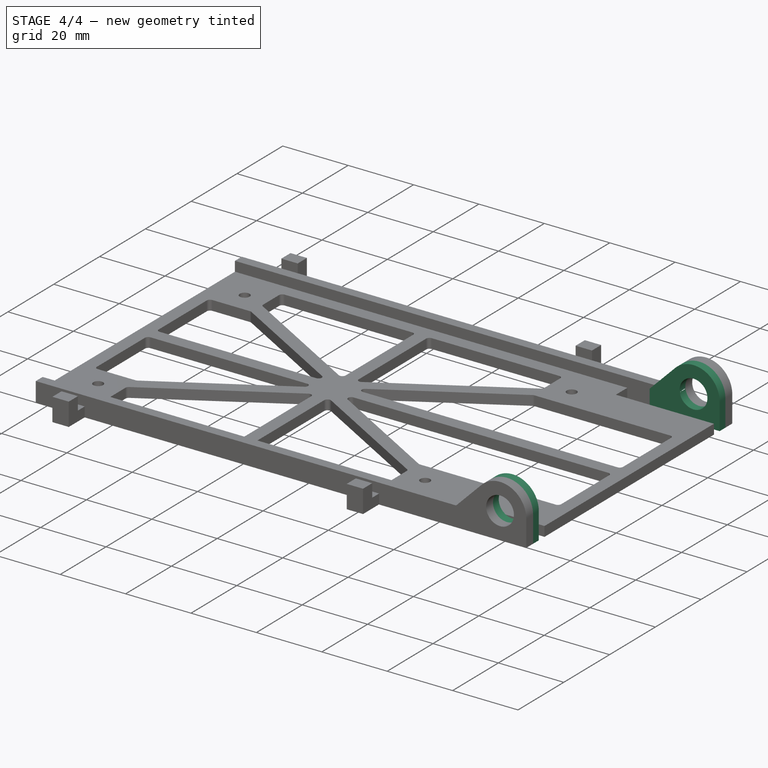
[diagram: stage 4 of 4 — iso view after this stage's code; geometry added in this stage tinted green]
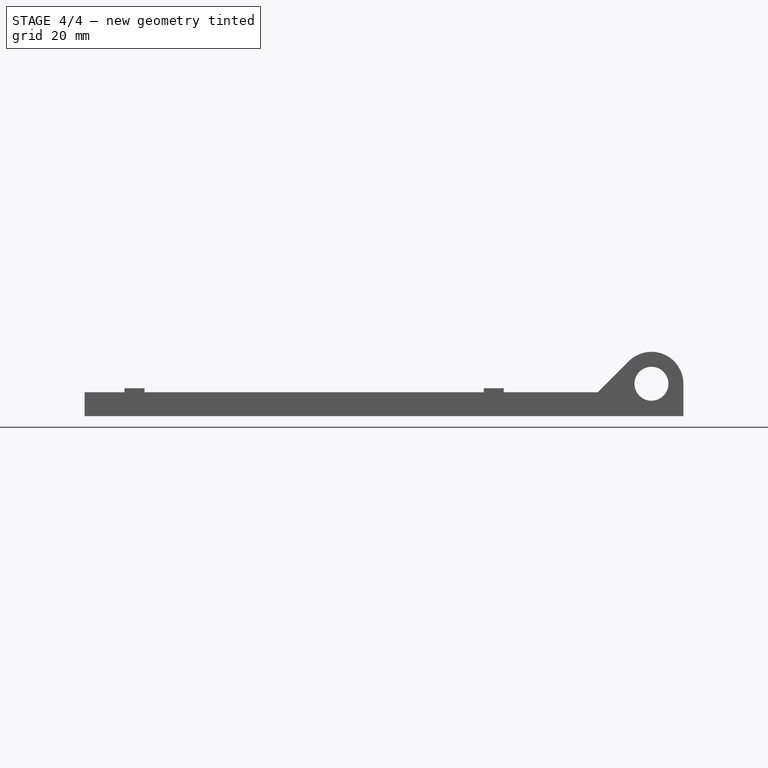
[diagram: stage 4 of 4 — front view after this stage's code; geometry added in this stage tinted green]
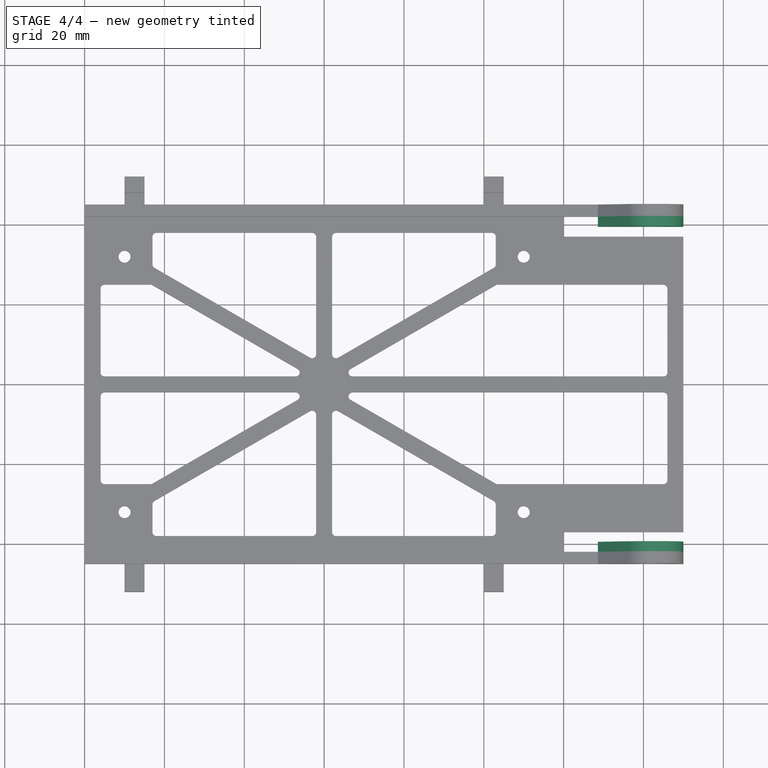
[diagram: stage 4 of 4 — top view after this stage's code; geometry added in this stage tinted green]
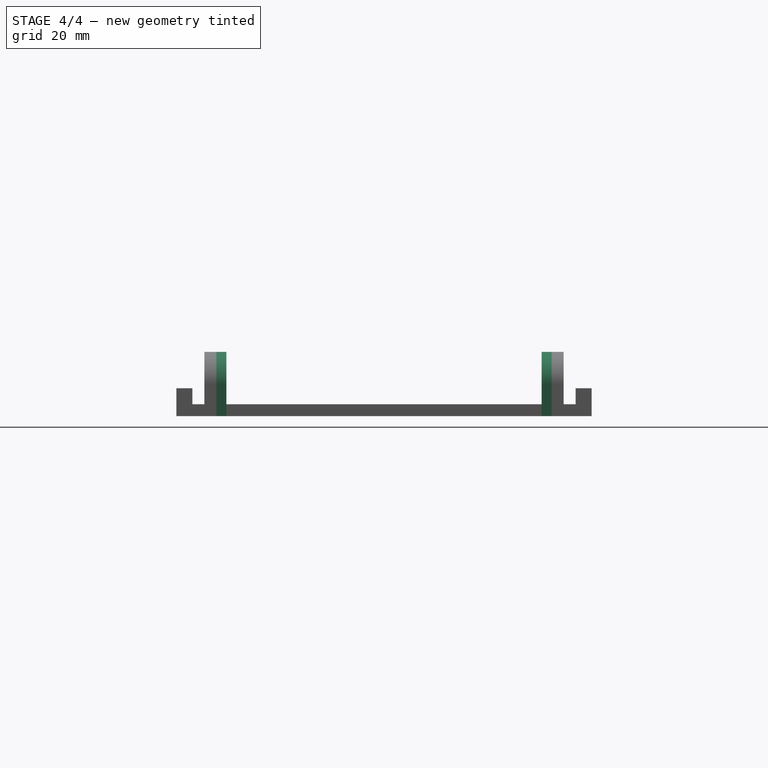
[diagram: stage 4 of 4 — right view after this stage's code; geometry added in this stage tinted green]
FEATURE [Sketcher::SketchObject] Sketch011
  ExternalGeometry = -> [Pocket001]
  Placement = pos=(0,-42,0) rot=(0,0.707107,0.707107;3.14159rad)
  Support = -> Pocket001 [Face1]
  sketch-geometry (6):
    g0: LineSegment StartX=-30 StartY=8.12132 StartZ=0 EndX=-30 EndY=0 EndZ=0
    g1: LineSegment StartX=-16.3432 StartY=13.7782 StartZ=0 EndX=-8.56499 EndY=6 EndZ=0
    g2: LineSegment StartX=-30 StartY=0 StartZ=0 EndX=-8.56499 EndY=0 EndZ=0
    g3: ArcOfCircle CenterX=-22 CenterY=8.1213 CenterZ=0 NormalX=0 NormalY=0 NormalZ=1 Radius=8 StartAngle=0.785401 EndAngle=3.14159
    g4: Circle CenterX=-22 CenterY=8.1213 CenterZ=0 NormalX=0 NormalY=0 NormalZ=1 Radius=4.25
    g5: LineSegment StartX=-8.56499 StartY=6 StartZ=0 EndX=-8.56499 EndY=0 EndZ=0
  constraints (17):
    c: Coincident(g1,g-4)
    c: Coincident(g0,g-6)
    c: Coincident(g0,g-5)
    c: PointOnObject(g2,g-1)
    c: Horizontal(g2)
    c: Coincident(g2,g0)
    c: Coincident(g3,g1)
    c: Coincident(g3,g-4)
    c: Coincident(g0,g3)
    c: Coincident(g0,g-4)
    c: Coincident(g4,g3)
    c: Radius(g4) = 4.25
    c: Coincident(g5,g-3)
    c: Coincident(g1,g5)
    c: Coincident(g2,g5)
    c: PointOnObject(g2,g-6)
    c: Vertical(g5)
FEATURE [PartDesign::Pad] Pad008
  Length = 2.5
  Length2 = 100
  Sketch = -> Sketch011
  Type = 0
FEATURE [Sketcher::SketchObject] Sketch012
  ExternalGeometry = -> [Pad008]
  Placement = pos=(0,42,0) rot=(1,0,0;1.5708rad)
  Support = -> Pad008 [Face38]
  sketch-geometry (6):
    g0: LineSegment StartX=8.56498 StartY=6 StartZ=0 EndX=16.3432 EndY=13.7782 EndZ=0
    g1: LineSegment StartX=30 StartY=0 StartZ=0 EndX=30 EndY=8.12131 EndZ=0
    g2: LineSegment StartX=8.56498 StartY=6 StartZ=0 EndX=8.56498 EndY=0 EndZ=0
    g3: LineSegment StartX=8.56498 StartY=0 StartZ=0 EndX=30 EndY=0 EndZ=0
    g4: ArcOfCircle CenterX=22 CenterY=8.12131 CenterZ=0 NormalX=0 NormalY=0 NormalZ=1 Radius=8 StartAngle=1.9118e-08 EndAngle=2.35619
    g5: Circle CenterX=22 CenterY=8.12131 CenterZ=0 NormalX=0 NormalY=0 NormalZ=1 Radius=4.25
  constraints (16):
    c: Vertical(g1)
    c: Horizontal(g3)
    c: Coincident(g3,g1)
    c: Coincident(g3,g2)
    c: Coincident(g0,g2)
    c: PointOnObject(g2,g-1)
    c: Coincident(g0,g-3)
    c: Coincident(g0,g-4)
    c: Coincident(g1,g-5)
    c: Coincident(g1,g-4)
    c: Coincident(g4,g1)
    c: Coincident(g0,g4)
    c: Coincident(g4,g-4)
    c: Vertical(g2)
    c: Coincident(g4,g5)
    c: Radius(g5) = 4.25
FEATURE [PartDesign::Pad] Pad009
  Length = 2.5
  Length2 = 100
  Sketch = -> Sketch012
  Type = 0
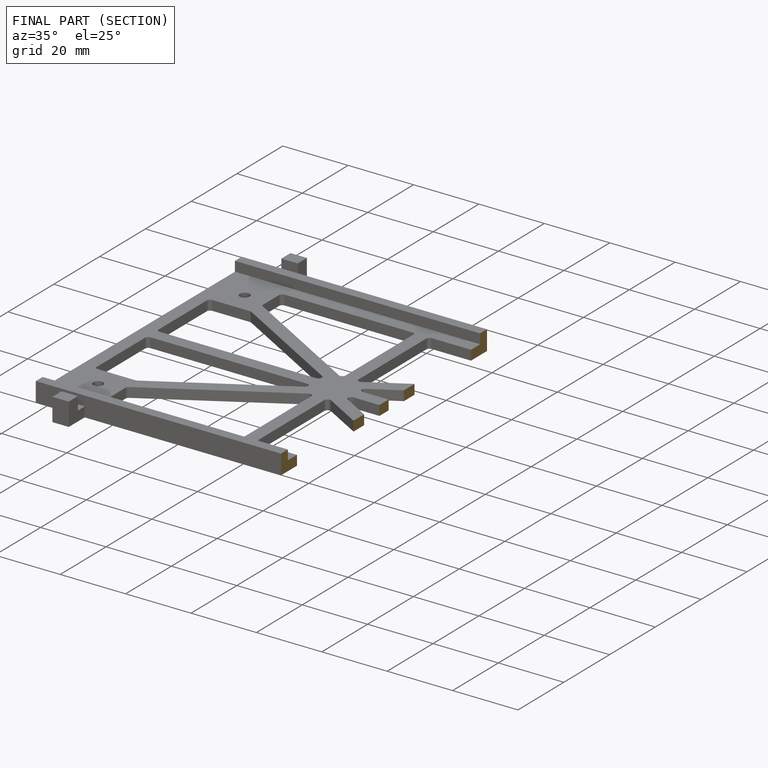
[diagram: finished part — half-section view (interior)]
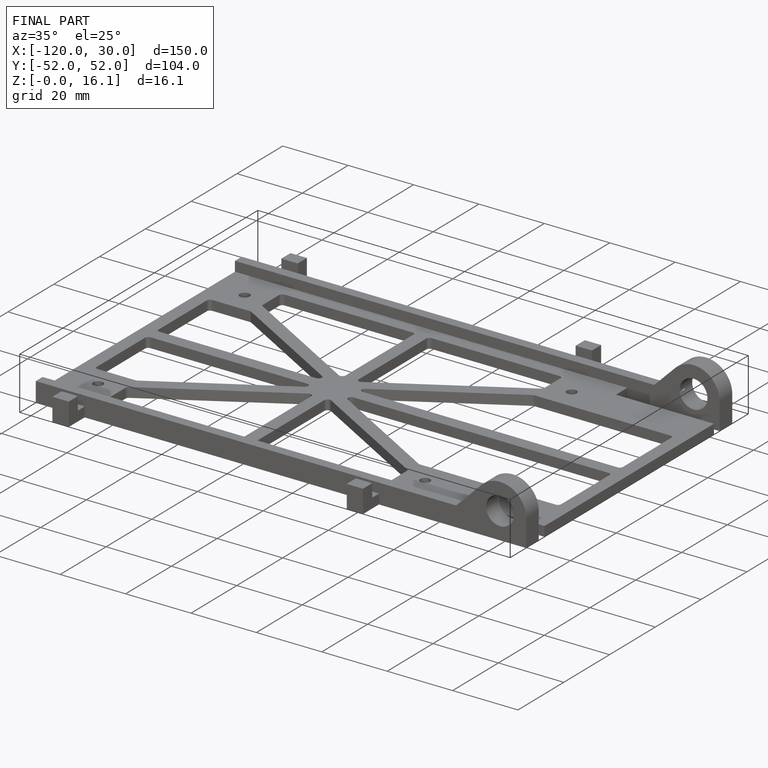
[diagram: finished part — iso view with bounding-box wireframe]
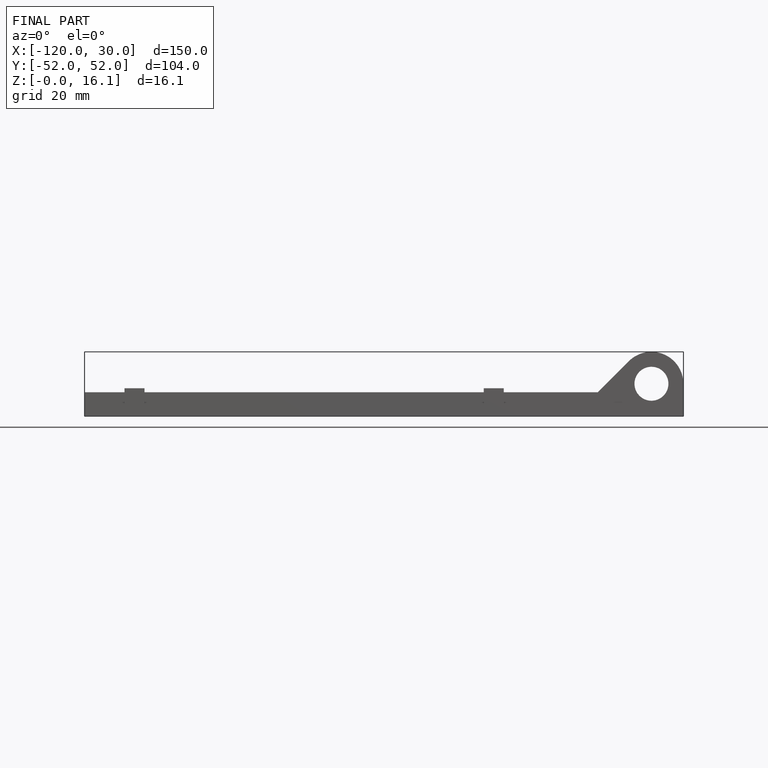
[diagram: finished part — front view with bounding-box wireframe]
